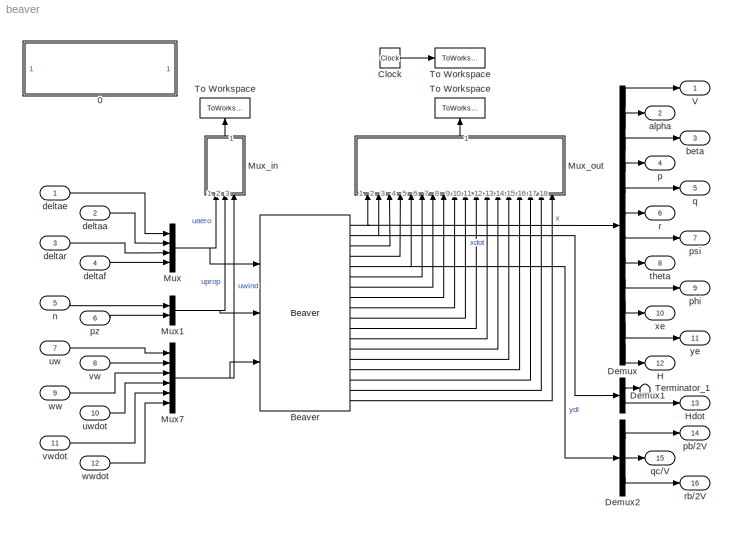
MODEL beaver
KIND model
BLOCK [SubSystem] 0
  OpenFcn = browse level1
  Ports = []
  RequestExecContextInheritance = off
  SID = 13
  ShowPortLabels = none
BLOCK [Reference] Beaver  REF=fdclib10/Beaver
  Ports = [3, 18]
  SID = 14
  SourceBlock = fdclib10/Beaver
  SourceType = Beaver dynamics and output equations
BLOCK [Clock] Clock
  SID = 15
BLOCK [Demux] Demux
  Outputs = 12
  Ports = [1, 12]
  SID = 16
BLOCK [Demux] Demux1
  Outputs = [11 1]
  Ports = [1, 2]
  SID = 17
BLOCK [Demux] Demux2
  Outputs = 3
  Ports = [1, 3]
  SID = 18
BLOCK [Outport] H
  IconDisplay = Port number
  Port = 12
  SID = 64
BLOCK [Outport] Hdot
  IconDisplay = Port number
  Port = 13
  SID = 65
BLOCK [Mux] Mux
  Ports = [4, 1]
  SID = 19
BLOCK [Mux] Mux1
  Inputs = 2
  Ports = [2, 1]
  SID = 20
BLOCK [Mux] Mux7
  Inputs = 6
  Ports = [6, 1]
  SID = 21
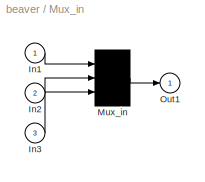
BLOCK [SubSystem] Mux_in
  OpenFcn = browse inputs
  Ports = [3, 1]
  RequestExecContextInheritance = off
  SID = 22
BLOCK [Inport] Mux_in/In1
  IconDisplay = Port number
  SID = 23
BLOCK [Inport] Mux_in/In2
  IconDisplay = Port number
  Port = 2
  SID = 24
BLOCK [Inport] Mux_in/In3
  IconDisplay = Port number
  Port = 3
  SID = 25
BLOCK [Mux] Mux_in/Mux_in
  Inputs = [4 2 6]
  Ports = [3, 1]
  SID = 26
BLOCK [Outport] Mux_in/Out1
  IconDisplay = Port number
  SID = 27
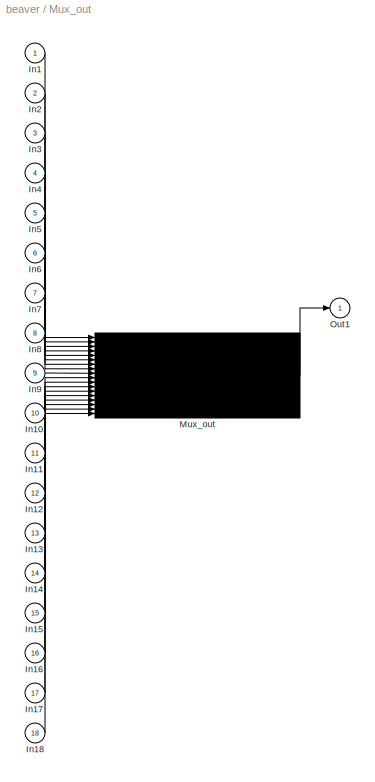
BLOCK [SubSystem] Mux_out
  OpenFcn = browse outputs
  Ports = [18, 1]
  RequestExecContextInheritance = off
  SID = 28
BLOCK [Inport] Mux_out/In1
  IconDisplay = Port number
  SID = 29
BLOCK [Inport] Mux_out/In10
  IconDisplay = Port number
  Port = 10
  SID = 38
BLOCK [Inport] Mux_out/In11
  IconDisplay = Port number
  Port = 11
  SID = 39
BLOCK [Inport] Mux_out/In12
  IconDisplay = Port number
  Port = 12
  SID = 40
BLOCK [Inport] Mux_out/In13
  IconDisplay = Port number
  Port = 13
  SID = 41
BLOCK [Inport] Mux_out/In14
  IconDisplay = Port number
  Port = 14
  SID = 42
BLOCK [Inport] Mux_out/In15
  IconDisplay = Port number
  Port = 15
  SID = 43
BLOCK [Inport] Mux_out/In16
  IconDisplay = Port number
  Port = 16
  SID = 44
BLOCK [Inport] Mux_out/In17
  IconDisplay = Port number
  Port = 17
  SID = 45
BLOCK [Inport] Mux_out/In18
  IconDisplay = Port number
  Port = 18
  SID = 46
BLOCK [Inport] Mux_out/In2
  IconDisplay = Port number
  Port = 2
  SID = 30
BLOCK [Inport] Mux_out/In3
  IconDisplay = Port number
  Port = 3
  SID = 31
BLOCK [Inport] Mux_out/In4
  IconDisplay = Port number
  Port = 4
  SID = 32
BLOCK [Inport] Mux_out/In5
  IconDisplay = Port number
  Port = 5
  SID = 33
BLOCK [Inport] Mux_out/In6
  IconDisplay = Port number
  Port = 6
  SID = 34
BLOCK [Inport] Mux_out/In7
  IconDisplay = Port number
  Port = 7
  SID = 35
BLOCK [Inport] Mux_out/In8
  IconDisplay = Port number
  Port = 8
  SID = 36
BLOCK [Inport] Mux_out/In9
  IconDisplay = Port number
  Port = 9
  SID = 37
BLOCK [Mux] Mux_out/Mux_out
  Inputs = [12 12 3 3 3 4 2 6 6 6 6 6 3 3 5 3 3 3]
  Ports = [18, 1]
  SID = 47
BLOCK [Outport] Mux_out/Out1
  IconDisplay = Port number
  SID = 48
BLOCK [Terminator] Terminator_1
  SID = 49
BLOCK [ToWorkspace] To Workspace
  MaxDataPoints = 5000
  Ports = [1]
  SID = 50
  VariableName = Out
BLOCK [ToWorkspace] To Workspace 
  MaxDataPoints = 5000
  Ports = [1]
  SID = 51
  VariableName = In
BLOCK [ToWorkspace] To Workspace  
  MaxDataPoints = 5000
  Ports = [1]
  SID = 52
  VariableName = time
BLOCK [Outport] V
  IconDisplay = Port number
  SID = 53
BLOCK [Outport] alpha
  IconDisplay = Port number
  Port = 2
  SID = 54
BLOCK [Outport] beta
  IconDisplay = Port number
  Port = 3
  SID = 55
BLOCK [Inport] deltaa
  IconDisplay = Port number
  Port = 2
  SID = 2
BLOCK [Inport] deltae
  IconDisplay = Port number
  SID = 1
BLOCK [Inport] deltaf
  IconDisplay = Port number
  Port = 4
  SID = 4
BLOCK [Inport] deltar
  IconDisplay = Port number
  Port = 3
  SID = 3
BLOCK [Inport] n
  IconDisplay = Port number
  Port = 5
  SID = 5
BLOCK [Outport] p
  IconDisplay = Port number
  Port = 4
  SID = 56
BLOCK [Outport] pb//2V
  IconDisplay = Port number
  Port = 14
  SID = 66
BLOCK [Outport] phi
  IconDisplay = Port number
  Port = 9
  SID = 61
BLOCK [Outport] psi
  IconDisplay = Port number
  Port = 7
  SID = 59
BLOCK [Inport] pz
  IconDisplay = Port number
  Port = 6
  SID = 6
BLOCK [Outport] q
  IconDisplay = Port number
  Port = 5
  SID = 57
BLOCK [Outport] qc//V
  IconDisplay = Port number
  Port = 15
  SID = 67
BLOCK [Outport] r
  IconDisplay = Port number
  Port = 6
  SID = 58
BLOCK [Outport] rb//2V
  IconDisplay = Port number
  Port = 16
  SID = 68
BLOCK [Outport] theta
  IconDisplay = Port number
  Port = 8
  SID = 60
BLOCK [Inport] uw
  IconDisplay = Port number
  Port = 7
  SID = 7
BLOCK [Inport] uwdot
  IconDisplay = Port number
  Port = 10
  SID = 10
BLOCK [Inport] vw
  IconDisplay = Port number
  Port = 8
  SID = 8
BLOCK [Inport] vwdot
  IconDisplay = Port number
  Port = 11
  SID = 11
BLOCK [Inport] ww
  IconDisplay = Port number
  Port = 9
  SID = 9
BLOCK [Inport] wwdot
  IconDisplay = Port number
  Port = 12
  SID = 12
BLOCK [Outport] xe
  IconDisplay = Port number
  Port = 10
  SID = 62
BLOCK [Outport] ye
  IconDisplay = Port number
  Port = 11
  SID = 63
NET Beaver:1 -> Demux:1, Mux_out:1
LINE Beaver:10 -> Mux_out:10
LINE Beaver:11 -> Mux_out:11
LINE Beaver:12 -> Mux_out:12
LINE Beaver:13 -> Mux_out:13
LINE Beaver:14 -> Mux_out:14
LINE Beaver:15 -> Mux_out:15
LINE Beaver:16 -> Mux_out:16
LINE Beaver:17 -> Mux_out:17
LINE Beaver:18 -> Mux_out:18
NET Beaver:2 -> Demux1:1, Mux_out:2
LINE Beaver:3 -> Mux_out:3
LINE Beaver:4 -> Mux_out:4
NET Beaver:5 -> Demux2:1, Mux_out:5
LINE Beaver:6 -> Mux_out:6
LINE Beaver:7 -> Mux_out:7
LINE Beaver:8 -> Mux_out:8
LINE Beaver:9 -> Mux_out:9
LINE Clock:1 -> To Workspace  :1
LINE Demux1:1 -> Terminator_1:1
LINE Demux1:2 -> Hdot:1
LINE Demux2:1 -> pb//2V:1
LINE Demux2:2 -> qc//V:1
LINE Demux2:3 -> rb//2V:1
LINE Demux:1 -> V:1
LINE Demux:10 -> xe:1
LINE Demux:11 -> ye:1
LINE Demux:12 -> H:1
LINE Demux:2 -> alpha:1
LINE Demux:3 -> beta:1
LINE Demux:4 -> p:1
LINE Demux:5 -> q:1
LINE Demux:6 -> r:1
LINE Demux:7 -> psi:1
LINE Demux:8 -> theta:1
LINE Demux:9 -> phi:1
NET Mux1:1 -> Beaver:2, Mux_in:2
NET Mux7:1 -> Beaver:3, Mux_in:3
NET Mux:1 -> Beaver:1, Mux_in:1
LINE Mux_in/In1:1 -> Mux_in/Mux_in:1
LINE Mux_in/In2:1 -> Mux_in/Mux_in:2
LINE Mux_in/In3:1 -> Mux_in/Mux_in:3
LINE Mux_in/Mux_in:1 -> Mux_in/Out1:1
LINE Mux_in:1 -> To Workspace :1
LINE Mux_out/In10:1 -> Mux_out/Mux_out:10
LINE Mux_out/In11:1 -> Mux_out/Mux_out:11
LINE Mux_out/In12:1 -> Mux_out/Mux_out:12
LINE Mux_out/In13:1 -> Mux_out/Mux_out:13
LINE Mux_out/In14:1 -> Mux_out/Mux_out:14
LINE Mux_out/In15:1 -> Mux_out/Mux_out:15
LINE Mux_out/In16:1 -> Mux_out/Mux_out:16
LINE Mux_out/In17:1 -> Mux_out/Mux_out:17
LINE Mux_out/In18:1 -> Mux_out/Mux_out:18
LINE Mux_out/In1:1 -> Mux_out/Mux_out:1
LINE Mux_out/In2:1 -> Mux_out/Mux_out:2
LINE Mux_out/In3:1 -> Mux_out/Mux_out:3
LINE Mux_out/In4:1 -> Mux_out/Mux_out:4
LINE Mux_out/In5:1 -> Mux_out/Mux_out:5
LINE Mux_out/In6:1 -> Mux_out/Mux_out:6
LINE Mux_out/In7:1 -> Mux_out/Mux_out:7
LINE Mux_out/In8:1 -> Mux_out/Mux_out:8
LINE Mux_out/In9:1 -> Mux_out/Mux_out:9
LINE Mux_out/Mux_out:1 -> Mux_out/Out1:1
LINE Mux_out:1 -> To Workspace:1
LINE deltaa:1 -> Mux:2
LINE deltae:1 -> Mux:1
LINE deltaf:1 -> Mux:4
LINE deltar:1 -> Mux:3
LINE n:1 -> Mux1:1
LINE pz:1 -> Mux1:2
LINE uw:1 -> Mux7:1
LINE uwdot:1 -> Mux7:4
LINE vw:1 -> Mux7:2
LINE vwdot:1 -> Mux7:5
LINE ww:1 -> Mux7:3
LINE wwdot:1 -> Mux7:6
note: NET lines group one-source signal fan-out (src -> all destinations, sorted); 1:1 wires keep LINE
